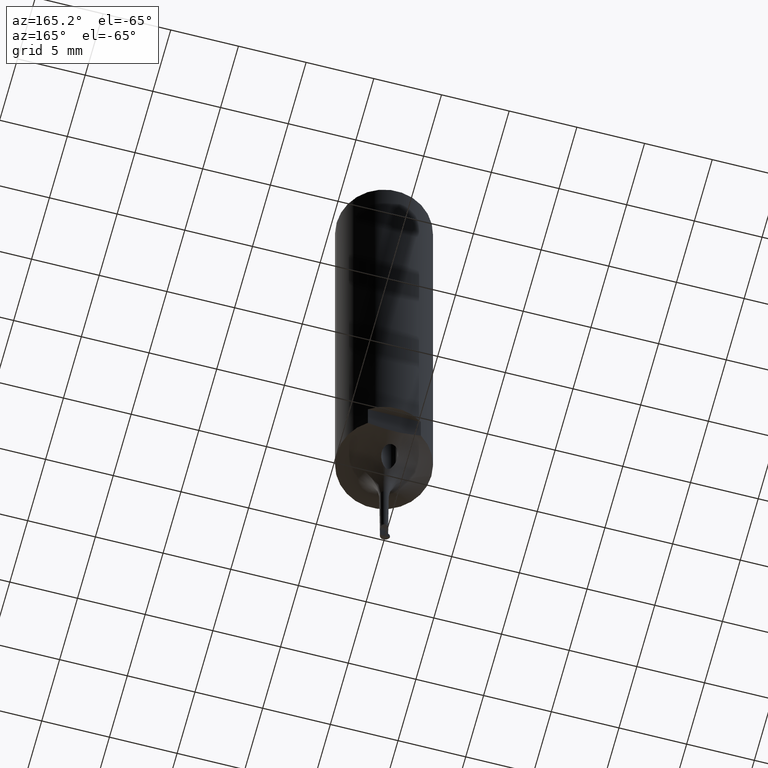
[diagram: clean part render]
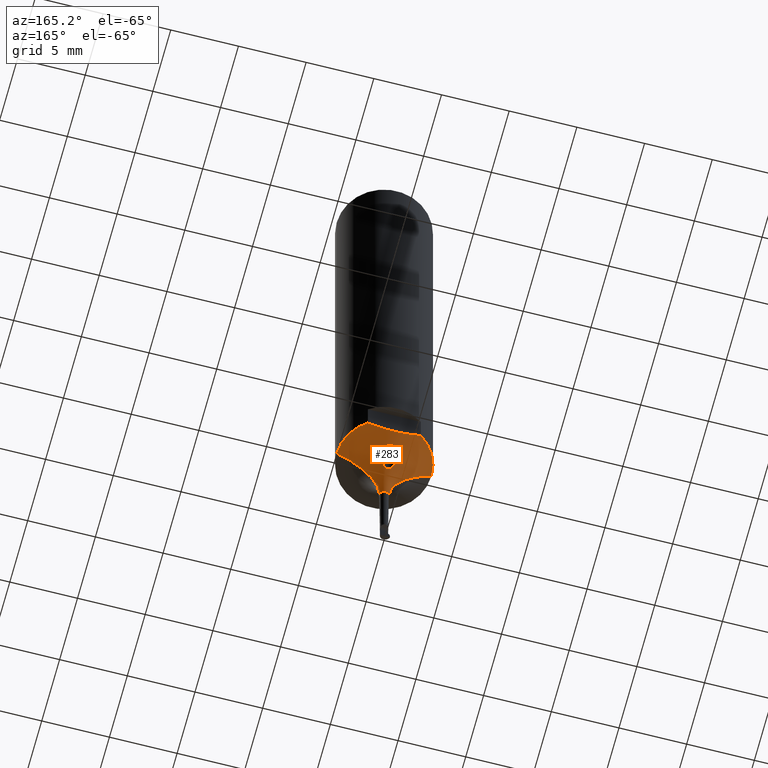
[diagram: same view with one face highlighted and labeled with its STEP entity id]
A machine part, auxiliary view. The second image highlights one B-rep face of the part: STEP entity #283.
In plain terms, the highlighted toroidal blend (fillet) surface has major radius 6.348 mm and minor (blend) radius 6 mm.
Its self-contained STEP definition (entity closure, byte-faithful):
#167=VERTEX_POINT('NONE',#429);
#171=EDGE_CURVE('NONE',#297,#179,#433,.F.);
#177=VERTEX_POINT('NONE',#440);
#179=VERTEX_POINT('NONE',#442);
#195=VERTEX_POINT('NONE',#461);
#201=EDGE_CURVE('NONE',#345,#241,#467,.F.);
#217=VERTEX_POINT('NONE',#484);
#241=VERTEX_POINT('NONE',#511);
#277=EDGE_CURVE('NONE',#241,#345,#553,.T.);
#281=EDGE_CURVE('NONE',#177,#167,#558,.F.);
#283=ADVANCED_FACE('NONE',(#560,#561),#562,.F.);
#287=EDGE_CURVE('NONE',#195,#167,#566,.T.);
#297=VERTEX_POINT('NONE',#576);
#301=EDGE_CURVE('NONE',#217,#195,#580,.F.);
#345=VERTEX_POINT('NONE',#630);
#353=EDGE_CURVE('NONE',#297,#177,#639,.T.);
#359=EDGE_CURVE('NONE',#179,#217,#645,.T.);
#429=CARTESIAN_POINT('',(-0.348184574411854,1.25831955236671E-015,-44.5345529859889));
#433=CIRCLE('',#737,3.5);
#440=CARTESIAN_POINT('',(0.348184574411854,-1.21568064815394E-015,-44.5345529859889));
#442=CARTESIAN_POINT('',(1.95959179422655,2.89999999999999,-39.3));
#461=CARTESIAN_POINT('',(-3.5,1.26488039877207E-014,-39.3));
#467=B_SPLINE_CURVE_WITH_KNOTS('',3,(#787,#788,#789,#790,#791,#792,#793,#794,#795,#796,#797,#798,#799,#800,#801,#802,#803,#804,#805,#806,#807,#808,#809,#810),.UNSPECIFIED.,.F.,.F.,(4,2,2,2,2,2,2,2,2,2,2,4),(-3.97256830585849,-3.60917380429004,-3.13785882312421,-2.81418032035666,-2.67922842235046,-2.60297125844657,-2.53672742774444,-2.452001684213,-2.28083603182799,-1.77685270705758,-1.2677065717621,-1.09187219174764),.UNSPECIFIED.);
#484=CARTESIAN_POINT('',(-1.95959179422653,2.90000000000001,-39.3));
#511=CARTESIAN_POINT('',(0.600000000000006,1.55,-40.8337148530335));
#553=B_SPLINE_CURVE_WITH_KNOTS('',3,(#957,#958,#959,#960,#961,#962,#963,#964,#965,#966,#967,#968,#969,#970,#971,#972,#973,#974,#975,#976,#977,#978,#979),.UNSPECIFIED.,.F.,.F.,(4,2,2,2,2,3,2,2,2,2,4),(3.71245790605922,3.98370804875726,4.25120107365978,4.48401107187428,4.67909641937812,4.74290406546317,4.92940037900841,5.15134522112019,5.37937100346106,5.67025228079548,5.85735664051287),.UNSPECIFIED.);
#558=CIRCLE('',#985,0.348184574411854);
#560=FACE_OUTER_BOUND('',#987,.T.);
#561=FACE_BOUND('',#988,.T.);
#562=TOROIDAL_SURFACE('',#989,6.34800486256179,6.0);
#566=CIRCLE('',#994,6.0);
#576=CARTESIAN_POINT('',(3.5,-1.22201917638828E-014,-39.3));
#580=CIRCLE('',#1041,3.5);
#630=CARTESIAN_POINT('',(-0.599999999999995,1.54999999999968,-40.8337148530339));
#639=CIRCLE('',#1220,6.0);
#645=B_SPLINE_CURVE_WITH_KNOTS('',3,(#1231,#1232,#1233,#1234,#1235,#1236,#1237,#1238,#1239,#1240,#1241,#1242,#1243,#1244,#1245,#1246,#1247,#1248),.UNSPECIFIED.,.F.,.F.,(4,2,2,2,2,2,2,2,4),(26.0806263081446,26.8710746585371,27.6615230089297,28.4519713593222,29.2424197097147,30.0328680601072,30.8233164104998,31.6137647608923,32.4042131112848),.UNSPECIFIED.);
#737=AXIS2_PLACEMENT_3D('',#1322,#1323,#1324);
#787=CARTESIAN_POINT('',(0.600000000000006,1.55,-40.8337148530335));
#788=CARTESIAN_POINT('',(0.600000000000005,1.45654406989069,-40.94269999436));
#789=CARTESIAN_POINT('',(0.578312964636731,1.36561777021787,-41.0655510338182));
#790=CARTESIAN_POINT('',(0.484501867086837,1.17655676534137,-41.3743339745784));
#791=CARTESIAN_POINT('',(0.407479085556503,1.10029954087928,-41.5429650122021));
#792=CARTESIAN_POINT('',(0.279660575545856,1.0155000102348,-41.7581472083089));
#793=CARTESIAN_POINT('',(0.221678275273339,0.988851506325728,-41.8372679859914));
#794=CARTESIAN_POINT('',(0.13501888419472,0.964790420656605,-41.9127377291189));
#795=CARTESIAN_POINT('',(0.106064303154247,0.958590558214861,-41.9329712909629));
#796=CARTESIAN_POINT('',(0.056593802484046,0.952403849565689,-41.9534590034952));
#797=CARTESIAN_POINT('',(0.0380195696287228,0.950896069679399,-41.9585260405193));
#798=CARTESIAN_POINT('',(0.00204333213199555,0.949770214906538,-41.9623077823557));
#799=CARTESIAN_POINT('',(-0.0145366342822113,0.949949411438384,-41.9617024989875));
#800=CARTESIAN_POINT('',(-0.0520741679290161,0.951891928253238,-41.9551885143339));
#801=CARTESIAN_POINT('',(-0.0720587659528344,0.95403793017423,-41.948005142375));
#802=CARTESIAN_POINT('',(-0.128957665452461,0.962758580947231,-41.9193389967313));
#803=CARTESIAN_POINT('',(-0.163124406456417,0.971792643578442,-41.8903346074043));
#804=CARTESIAN_POINT('',(-0.277286558753739,1.0103670994104,-41.7728214657243));
#805=CARTESIAN_POINT('',(-0.359614836028659,1.05980535701341,-41.6344394466741));
#806=CARTESIAN_POINT('',(-0.497654526673857,1.20049812124654,-41.3347698793592));
#807=CARTESIAN_POINT('',(-0.559029988356796,1.29815667398756,-41.1617309559452));
#808=CARTESIAN_POINT('',(-0.595413060577049,1.46406767378679,-40.9373699667367));
#809=CARTESIAN_POINT('',(-0.599999999999971,1.50711984363459,-40.8837202394881));
#810=CARTESIAN_POINT('',(-0.599999999999995,1.54999999999968,-40.8337148530339));
#957=CARTESIAN_POINT('',(0.600000000000006,1.55,-40.8337148530335));
#958=CARTESIAN_POINT('',(0.600000000000006,1.63028316811239,-40.7400913407253));
#959=CARTESIAN_POINT('',(0.583875732762293,1.70959319756817,-40.6596435362094));
#960=CARTESIAN_POINT('',(0.522213867039434,1.85577442206244,-40.5233391879534));
#961=CARTESIAN_POINT('',(0.477570617361319,1.9215711630117,-40.4682203528719));
#962=CARTESIAN_POINT('',(0.373364590781281,2.02460404047431,-40.3859732778253));
#963=CARTESIAN_POINT('',(0.314713721436795,2.06624361151773,-40.3547935933417));
#964=CARTESIAN_POINT('',(0.189883663973847,2.12257559444302,-40.31355582001));
#965=CARTESIAN_POINT('',(0.128071708381345,2.13974805943634,-40.3014310209901));
#966=CARTESIAN_POINT('',(0.0424994922441868,2.14886864330803,-40.2949772848188));
#967=CARTESIAN_POINT('',(0.0212692153616878,2.15000000000001,-40.2941794508893));
#968=CARTESIAN_POINT('',(4.77395900588819E-015,2.15000000000001,-40.2941794508893));
#969=CARTESIAN_POINT('',(-0.0621654378484084,2.15000000000001,-40.2941794508893));
#970=CARTESIAN_POINT('',(-0.12331689199068,2.1403198065888,-40.3009540262454));
#971=CARTESIAN_POINT('',(-0.250049231917437,2.10017607498771,-40.3298380947071));
#972=CARTESIAN_POINT('',(-0.311886944735299,2.066932702504,-40.3540644808408));
#973=CARTESIAN_POINT('',(-0.419730033603435,1.98424549830721,-40.417707796285));
#974=CARTESIAN_POINT('',(-0.463948522584748,1.93548629122207,-40.4567423392836));
#975=CARTESIAN_POINT('',(-0.542517264023694,1.81821011978286,-40.5573170136722));
#976=CARTESIAN_POINT('',(-0.570211917306322,1.74905644924588,-40.6212285725125));
#977=CARTESIAN_POINT('',(-0.595112194331373,1.63839133831165,-40.7343030351664));
#978=CARTESIAN_POINT('',(-0.600000000000019,1.59421739407723,-40.7821500252375));
#979=CARTESIAN_POINT('',(-0.599999999999995,1.54999999999968,-40.8337148530339));
#985=AXIS2_PLACEMENT_3D('',#1488,#1489,#1490);
#987=EDGE_LOOP('',(#1492,#1493,#1494,#1495,#1496,#1497));
#988=EDGE_LOOP('',(#1498,#1499));
#989=AXIS2_PLACEMENT_3D('',#1500,#1501,#1502);
#994=AXIS2_PLACEMENT_3D('',#1503,#1504,#1505);
#1041=AXIS2_PLACEMENT_3D('',#1509,#1510,#1511);
#1220=AXIS2_PLACEMENT_3D('',#1579,#1580,#1581);
#1231=CARTESIAN_POINT('',(3.24351847125822,2.89999999999999,-38.9231109253378));
#1232=CARTESIAN_POINT('',(2.98870965128777,2.89999999999999,-38.990160477516));
#1233=CARTESIAN_POINT('',(2.72364424699026,2.89999999999999,-39.0676381504805));
#1234=CARTESIAN_POINT('',(2.18411182759186,2.89999999999999,-39.2311990179438));
#1235=CARTESIAN_POINT('',(1.90963727337853,2.89999999999999,-39.317257342408));
#1236=CARTESIAN_POINT('',(1.35904276727398,2.9,-39.4746633541972));
#1237=CARTESIAN_POINT('',(1.0825978459389,2.9,-39.5455597909862));
#1238=CARTESIAN_POINT('',(0.534902422116784,2.9,-39.64403422535));
#1239=CARTESIAN_POINT('',(0.263482783464186,2.9,-39.6706691905148));
#1240=CARTESIAN_POINT('',(-0.263482783464165,2.9,-39.6706691905148));
#1241=CARTESIAN_POINT('',(-0.534902422116762,2.9,-39.64403422535));
#1242=CARTESIAN_POINT('',(-1.08259784593888,2.9,-39.5455597909862));
#1243=CARTESIAN_POINT('',(-1.35904276727396,2.9,-39.4746633541972));
#1244=CARTESIAN_POINT('',(-1.90963727337851,2.90000000000001,-39.317257342408));
#1245=CARTESIAN_POINT('',(-2.18411182759184,2.90000000000001,-39.2311990179438));
#1246=CARTESIAN_POINT('',(-2.72364424699024,2.90000000000001,-39.0676381504805));
#1247=CARTESIAN_POINT('',(-2.98870965128775,2.90000000000001,-38.990160477516));
#1248=CARTESIAN_POINT('',(-3.2435184712582,2.90000000000001,-38.9231109253378));
#1322=CARTESIAN_POINT('',(0.0,0.0,-39.3));
#1323=DIRECTION('',(0.0,0.0,-1.0));
#1324=DIRECTION('',(1.0,-3.49148336110938E-015,0.0));
#1488=CARTESIAN_POINT('',(0.0,0.0,-44.5345529859889));
#1489=DIRECTION('',(0.0,0.0,-1.0));
#1490=DIRECTION('',(1.0,-3.49148336110938E-015,0.0));
#1492=ORIENTED_EDGE('',*,*,#287,.F.);
#1493=ORIENTED_EDGE('',*,*,#301,.F.);
#1494=ORIENTED_EDGE('',*,*,#359,.F.);
#1495=ORIENTED_EDGE('',*,*,#171,.F.);
#1496=ORIENTED_EDGE('',*,*,#353,.T.);
#1497=ORIENTED_EDGE('',*,*,#281,.T.);
#1498=ORIENTED_EDGE('',*,*,#277,.T.);
#1499=ORIENTED_EDGE('',*,*,#201,.T.);
#1500=CARTESIAN_POINT('',(0.0,0.0,-44.5809912235133));
#1501=DIRECTION('',(0.0,0.0,1.0));
#1502=DIRECTION('',(1.0,-3.49148336110938E-015,-0.0));
#1503=CARTESIAN_POINT('',(-6.34800486256179,2.29413340627548E-014,-44.5809912235133));
#1504=DIRECTION('',(3.61394399649162E-015,1.0,0.0));
#1505=DIRECTION('',(1.0,-3.61394399649162E-015,-0.0));
#1509=CARTESIAN_POINT('',(0.0,0.0,-39.3));
#1510=DIRECTION('',(0.0,0.0,-1.0));
#1511=DIRECTION('',(1.0,-3.49148336110938E-015,0.0));
#1579=CARTESIAN_POINT('',(6.34800486256179,-2.21639533538759E-014,-44.5809912235133));
#1580=DIRECTION('',(-3.49148336110938E-015,-1.0,0.0));
#1581=DIRECTION('',(-1.0,3.49148336110938E-015,0.0));